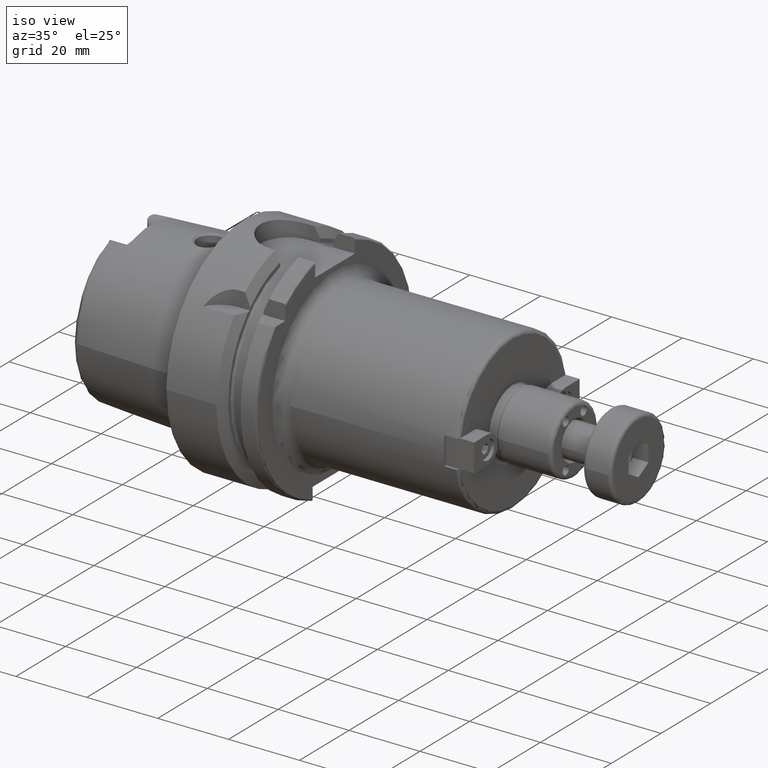
[diagram: clean part render]
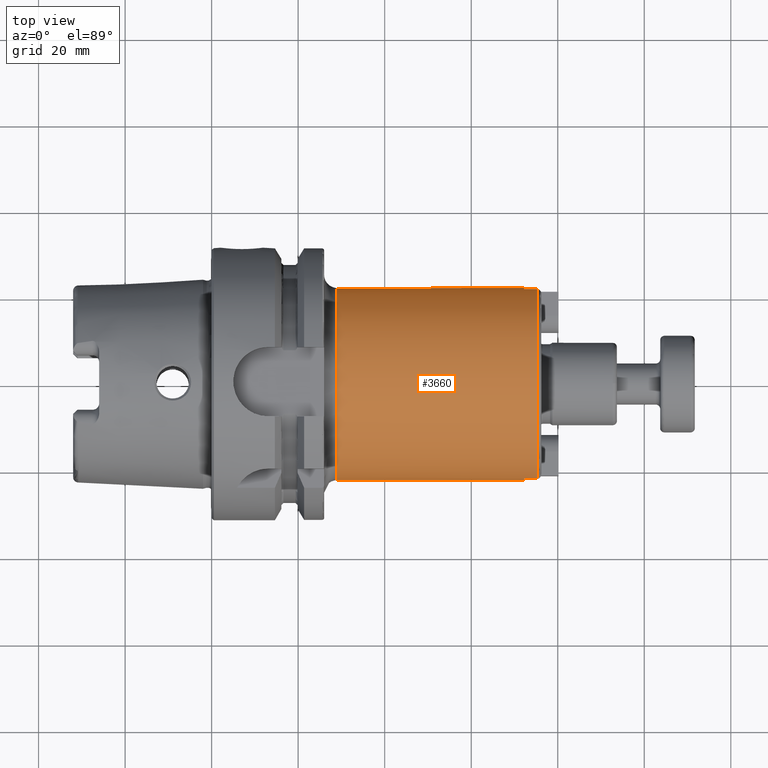
[diagram: tour spotlight — one face highlighted and labeled with its STEP entity id]
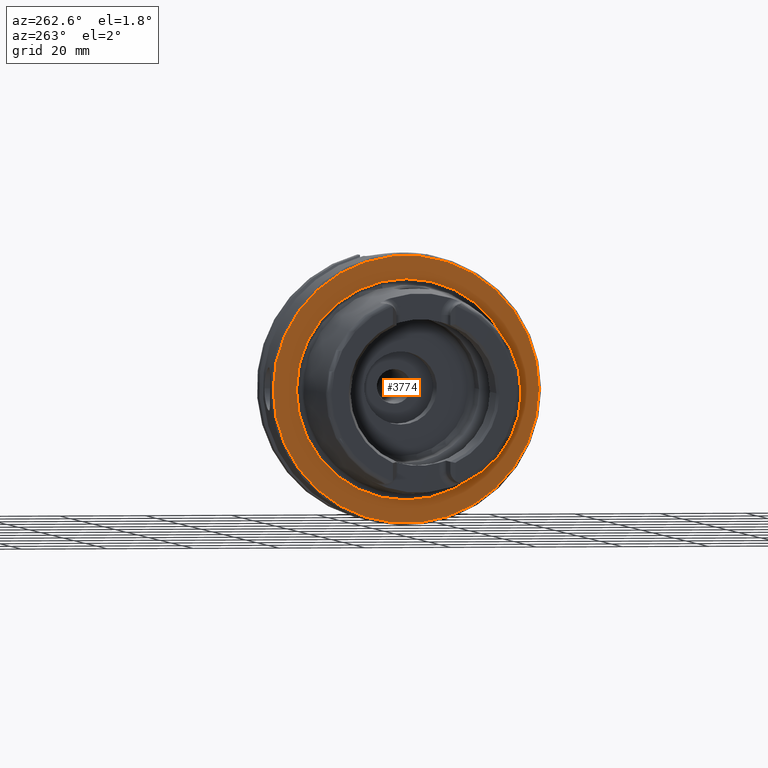
[diagram: tour spotlight — one face highlighted and labeled with its STEP entity id]
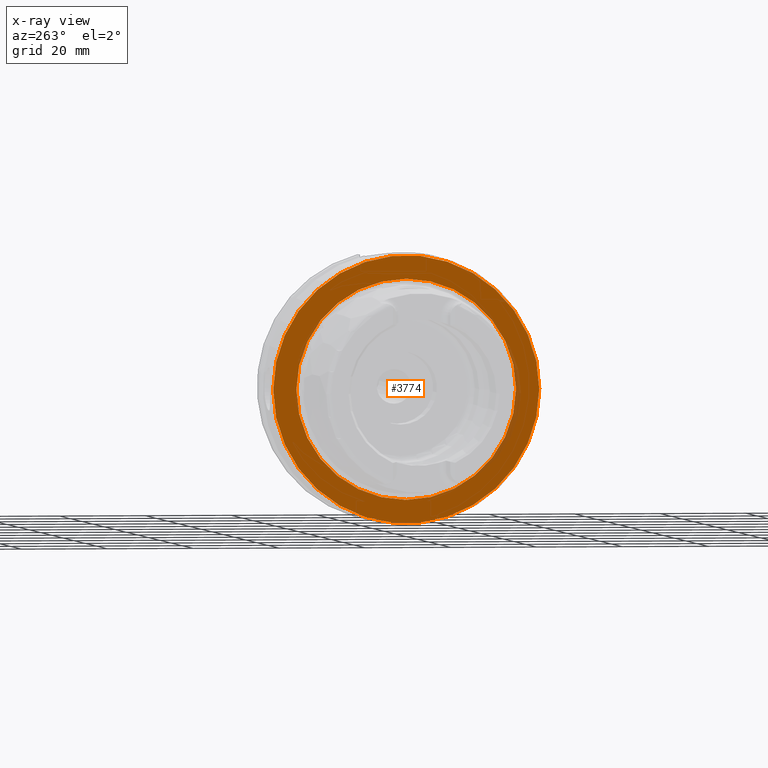
[diagram: x-ray of the same camera — body ghosted, this tour face saturated]
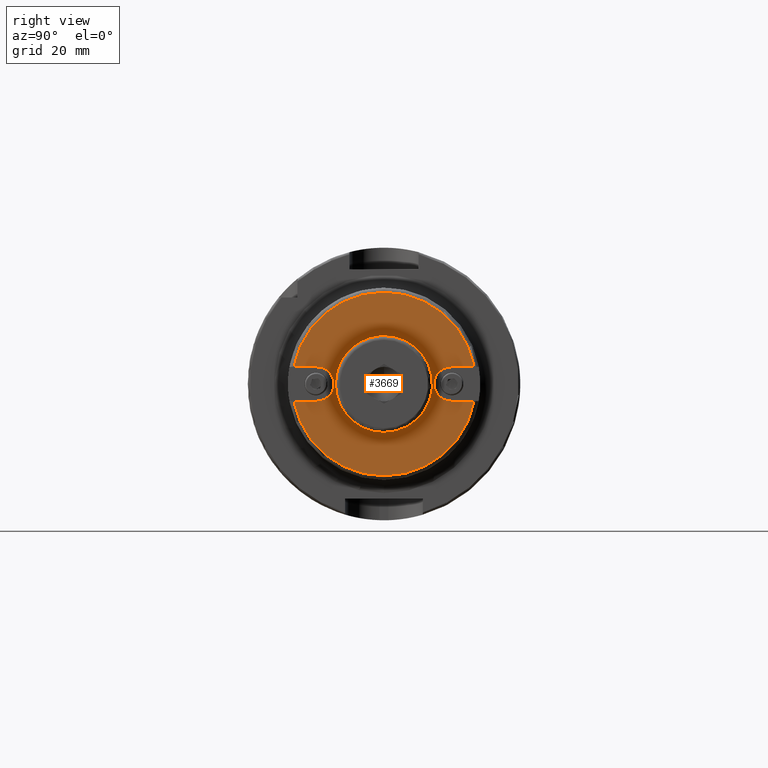
[diagram: tour spotlight — one face highlighted and labeled with its STEP entity id]
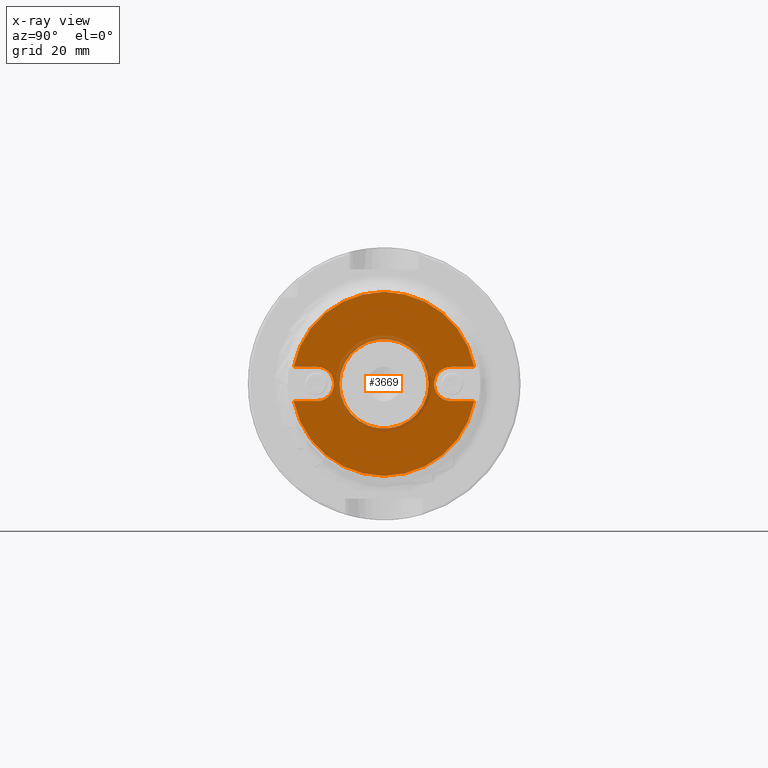
[diagram: x-ray of the same camera — body ghosted, this tour face saturated]
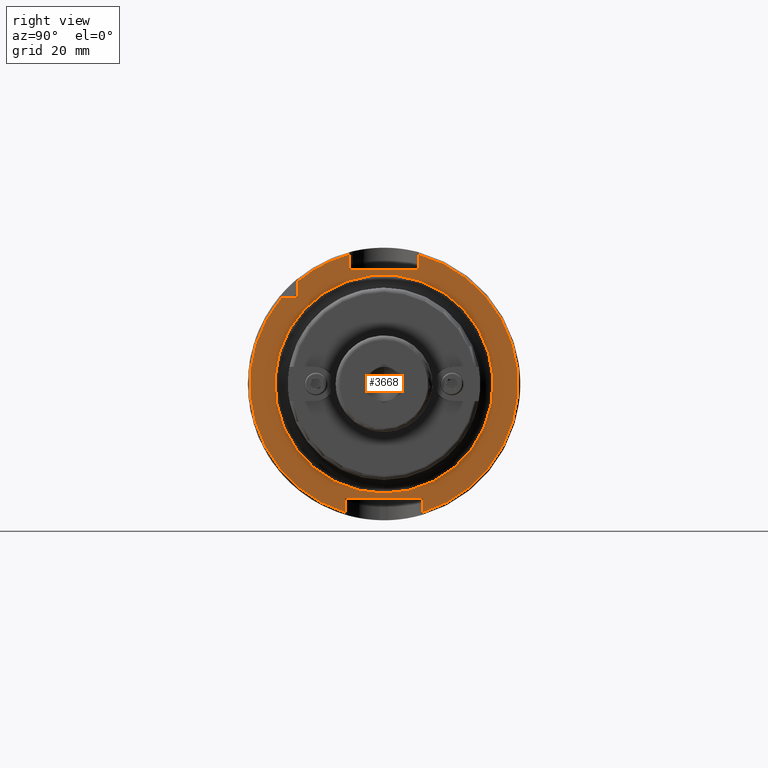
[diagram: tour spotlight — one face highlighted and labeled with its STEP entity id]
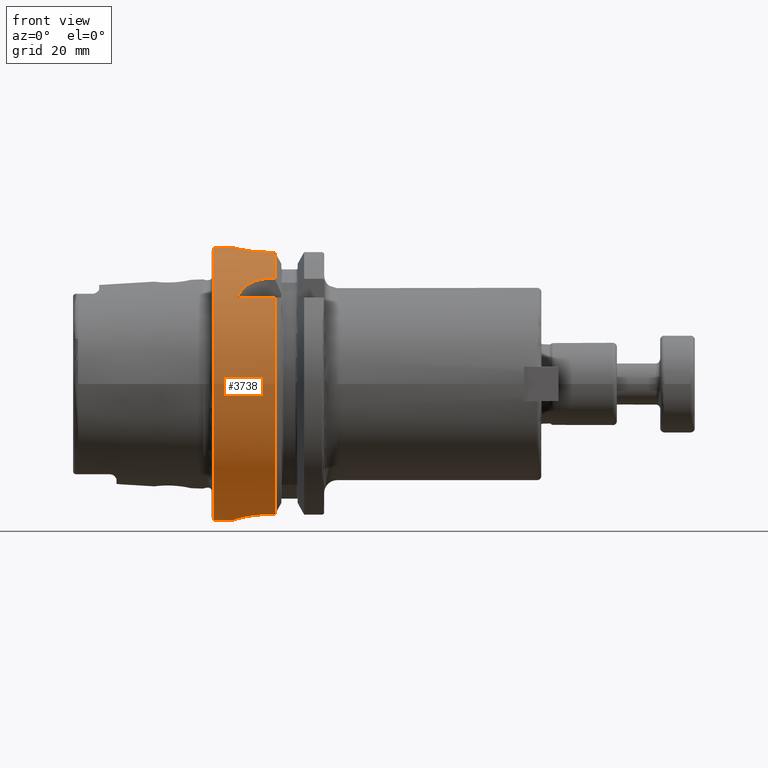
[diagram: tour spotlight — one face highlighted and labeled with its STEP entity id]
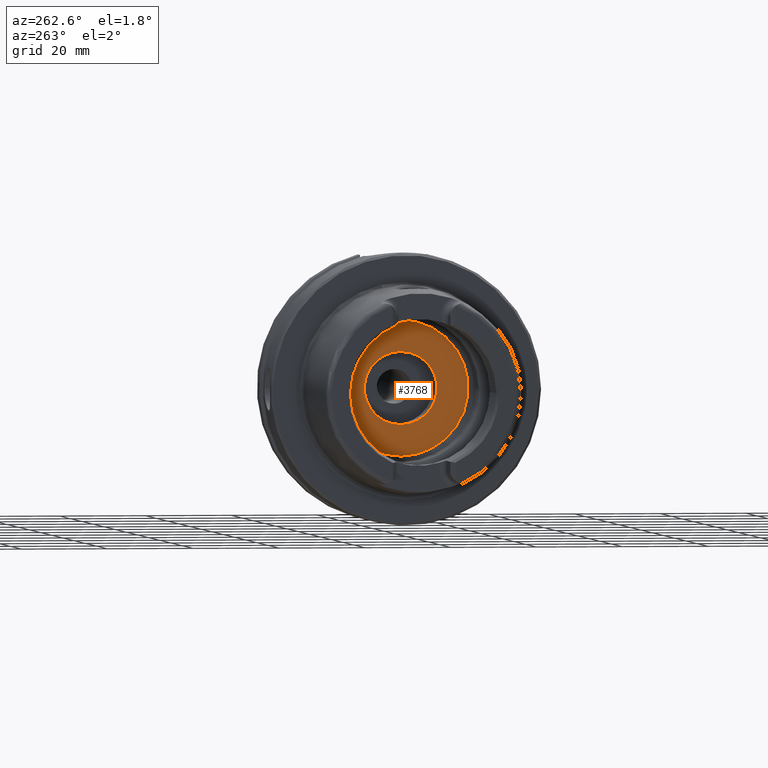
[diagram: tour spotlight — one face highlighted and labeled with its STEP entity id]
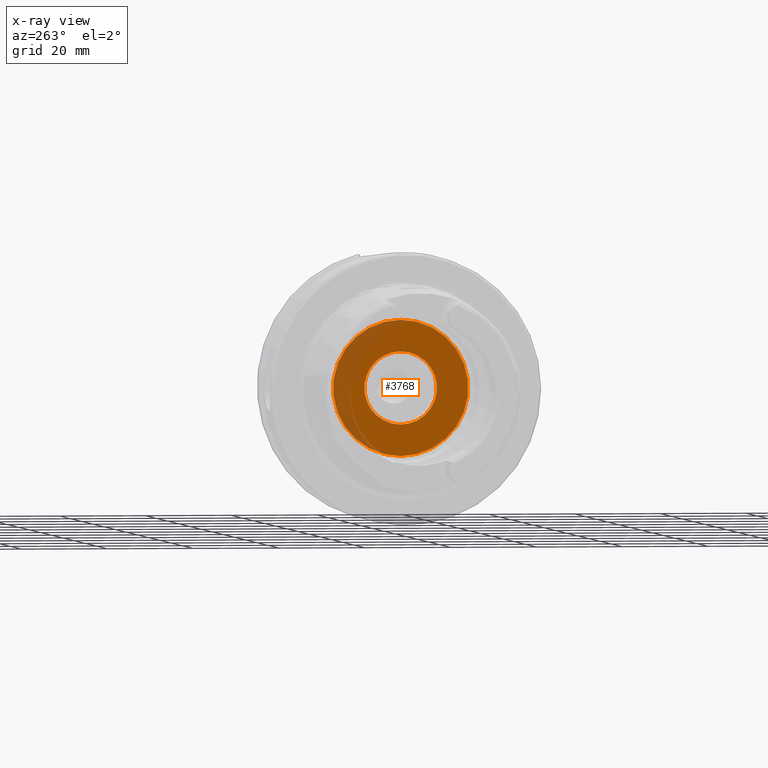
[diagram: x-ray of the same camera — body ghosted, this tour face saturated]
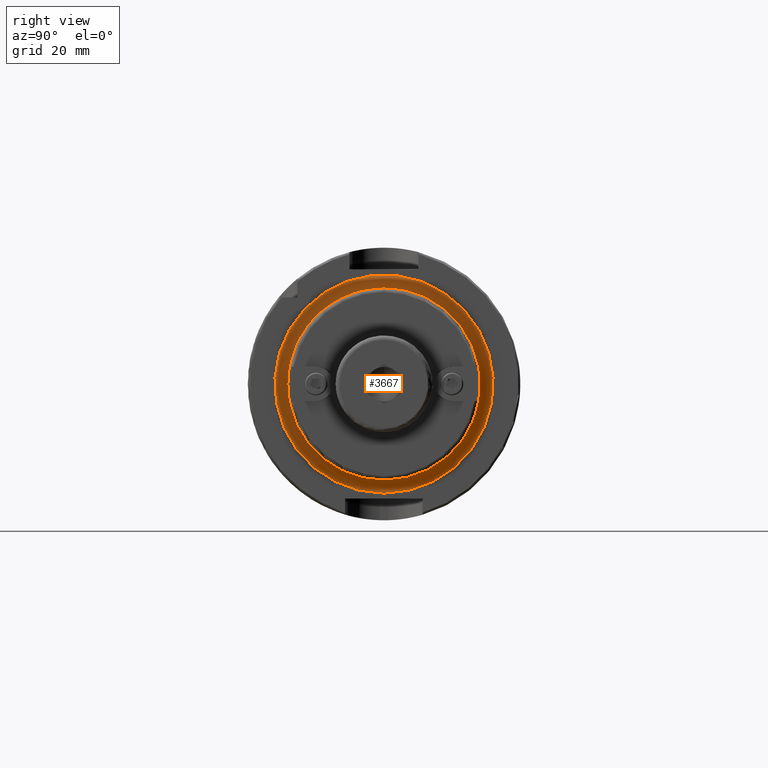
[diagram: tour spotlight — one face highlighted and labeled with its STEP entity id]
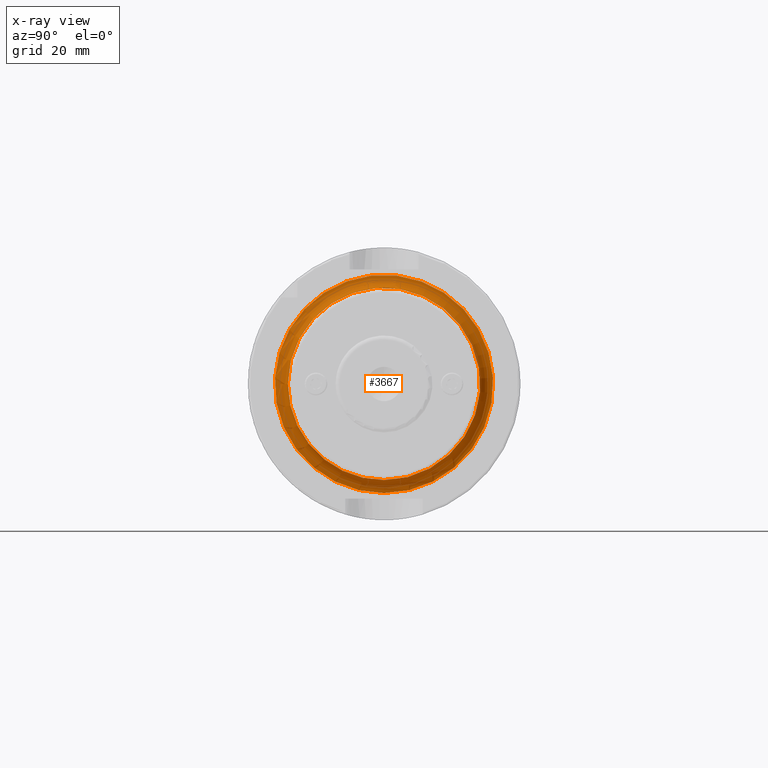
[diagram: x-ray of the same camera — body ghosted, this tour face saturated]
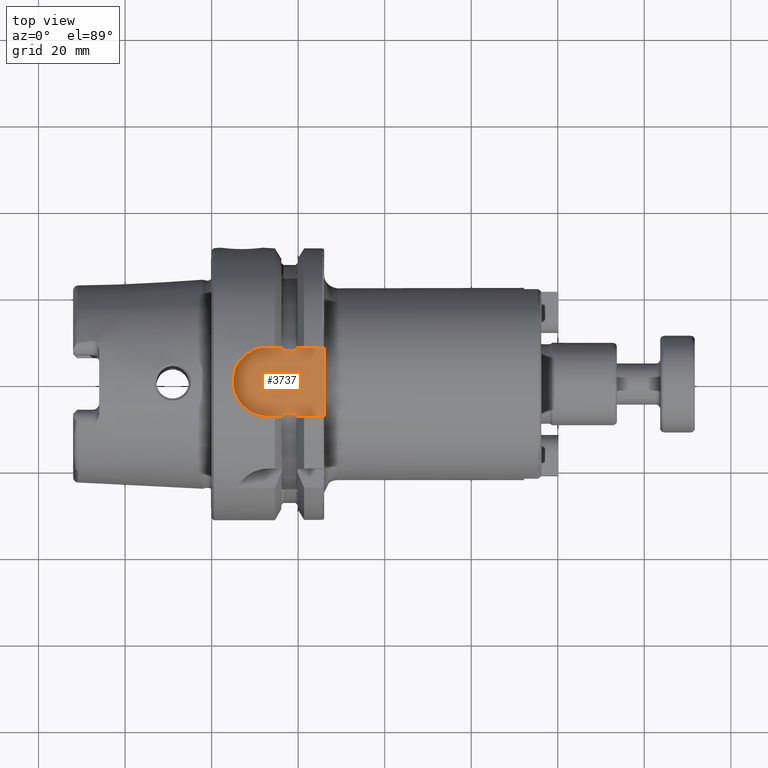
[diagram: tour spotlight — one face highlighted and labeled with its STEP entity id]
A machine part: a face-by-face anatomy tour. The part has 213 B-rep faces; the first image is the clean iso view, then the 8 largest visible faces are spotlighted one at a time (largest first), each with its STEP entity span.

Face 1 — top view, entity #3660. In plain terms, the highlighted cylindrical surface (bore or boss wall) has radius 22.225 mm, axis along (1, 0, 0).
Definition (entity closure, byte-faithful):
#792=CYLINDRICAL_SURFACE('',#4046,22.225);
#857=FACE_OUTER_BOUND('',#1053,.T.);
#1053=EDGE_LOOP('',(#2747,#2748,#2749,#2750,#2751,#2752,#2753,#2754,#2755,
#2756,#2757,#2758,#2759));
#1253=LINE('',#5721,#1447);
#1256=LINE('',#5747,#1450);
#1261=LINE('',#5768,#1455);
#1264=LINE('',#5792,#1458);
#1266=LINE('',#5796,#1460);
#1447=VECTOR('',#4564,10.);
#1450=VECTOR('',#4581,10.);
#1455=VECTOR('',#4588,10.);
#1458=VECTOR('',#4603,10.);
#1460=VECTOR('',#4607,22.225);
#1641=CIRCLE('',#4033,22.225);
#1643=CIRCLE('',#4035,22.225);
#1645=CIRCLE('',#4041,22.225);
#1648=CIRCLE('',#4047,22.225);
#1649=CIRCLE('',#4048,22.225);
#1650=CIRCLE('',#4049,22.225);
#1651=CIRCLE('',#4050,22.225);
#1879=VERTEX_POINT('',#5704);
#1882=VERTEX_POINT('',#5719);
#1883=VERTEX_POINT('',#5723);
#1885=VERTEX_POINT('',#5727);
#1887=VERTEX_POINT('',#5735);
#1890=VERTEX_POINT('',#5751);
#1893=VERTEX_POINT('',#5766);
#1894=VERTEX_POINT('',#5770);
#1897=VERTEX_POINT('',#5780);
#1899=VERTEX_POINT('',#5795);
#1900=VERTEX_POINT('',#5797);
#2205=EDGE_CURVE('',#1879,#1882,#1253,.T.);
#2206=EDGE_CURVE('',#1882,#1883,#1641,.T.);
#2209=EDGE_CURVE('',#1883,#1885,#1643,.T.);
#2213=EDGE_CURVE('',#1885,#1887,#1256,.T.);
#2219=EDGE_CURVE('',#1890,#1893,#1261,.T.);
#2220=EDGE_CURVE('',#1893,#1894,#1645,.T.);
#2226=EDGE_CURVE('',#1894,#1897,#1264,.T.);
#2228=EDGE_CURVE('',#1883,#1899,#1266,.T.);
#2229=EDGE_CURVE('',#1900,#1899,#1648,.T.);
#2230=EDGE_CURVE('',#1899,#1900,#1649,.T.);
#2231=EDGE_CURVE('',#1890,#1887,#1650,.T.);
#2232=EDGE_CURVE('',#1879,#1897,#1651,.T.);
#2747=ORIENTED_EDGE('',*,*,#2205,.T.);
#2748=ORIENTED_EDGE('',*,*,#2206,.T.);
#2749=ORIENTED_EDGE('',*,*,#2228,.T.);
#2750=ORIENTED_EDGE('',*,*,#2229,.F.);
#2751=ORIENTED_EDGE('',*,*,#2230,.F.);
#2752=ORIENTED_EDGE('',*,*,#2228,.F.);
#2753=ORIENTED_EDGE('',*,*,#2209,.T.);
#2754=ORIENTED_EDGE('',*,*,#2213,.T.);
#2755=ORIENTED_EDGE('',*,*,#2231,.F.);
#2756=ORIENTED_EDGE('',*,*,#2219,.T.);
#2757=ORIENTED_EDGE('',*,*,#2220,.T.);
#2758=ORIENTED_EDGE('',*,*,#2226,.T.);
#2759=ORIENTED_EDGE('',*,*,#2232,.F.);
#3660=ADVANCED_FACE('',(#857),#792,.T.);
#4033=AXIS2_PLACEMENT_3D('',#5724,#4567,#4568);
#4035=AXIS2_PLACEMENT_3D('',#5729,#4572,#4573);
#4041=AXIS2_PLACEMENT_3D('',#5771,#4591,#4592);
#4046=AXIS2_PLACEMENT_3D('',#5794,#4605,#4606);
#4047=AXIS2_PLACEMENT_3D('',#5798,#4608,#4609);
#4048=AXIS2_PLACEMENT_3D('',#5799,#4610,#4611);
#4049=AXIS2_PLACEMENT_3D('',#5800,#4612,#4613);
#4050=AXIS2_PLACEMENT_3D('',#5801,#4614,#4615);
#4564=DIRECTION('',(-1.,0.,0.));
#4567=DIRECTION('center_axis',(-1.,0.,0.));
#4568=DIRECTION('ref_axis',(0.,1.,0.));
#4572=DIRECTION('center_axis',(-1.,0.,0.));
#4573=DIRECTION('ref_axis',(0.,1.,0.));
#4581=DIRECTION('',(1.,0.,0.));
#4588=DIRECTION('',(-1.,0.,0.));
#4591=DIRECTION('center_axis',(-1.,0.,0.));
#4592=DIRECTION('ref_axis',(0.,1.,0.));
#4603=DIRECTION('',(1.,0.,0.));
#4605=DIRECTION('center_axis',(1.,0.,0.));
#4606=DIRECTION('ref_axis',(0.,1.,0.));
#4607=DIRECTION('',(-1.,0.,0.));
#4608=DIRECTION('center_axis',(-1.,0.,0.));
#4609=DIRECTION('ref_axis',(0.,-1.,-1.22464679914735E-16));
#4610=DIRECTION('center_axis',(-1.,0.,0.));
#4611=DIRECTION('ref_axis',(0.,-1.,-1.22464679914735E-16));
#4612=DIRECTION('center_axis',(1.,0.,0.));
#4613=DIRECTION('ref_axis',(0.,-1.,1.83697019872103E-16));
#4614=DIRECTION('center_axis',(1.,0.,0.));
#4615=DIRECTION('ref_axis',(0.,-1.,1.83697019872103E-16));
#5704=CARTESIAN_POINT('',(75.2,-21.868456735673,-3.965));
#5719=CARTESIAN_POINT('',(72.23,-21.868456735673,-3.965));
#5721=CARTESIAN_POINT('',(51.1,-21.868456735673,-3.965));
#5723=CARTESIAN_POINT('',(72.23,-22.225,-2.72177751110499E-15));
#5724=CARTESIAN_POINT('Origin',(72.23,0.,0.));
#5727=CARTESIAN_POINT('',(72.23,-21.868456735673,3.965));
#5729=CARTESIAN_POINT('Origin',(72.23,0.,0.));
#5735=CARTESIAN_POINT('',(75.2,-21.868456735673,3.965));
#5747=CARTESIAN_POINT('',(51.1,-21.868456735673,3.965));
#5751=CARTESIAN_POINT('',(75.2,21.868456735673,3.965));
#5766=CARTESIAN_POINT('',(72.23,21.868456735673,3.965));
#5768=CARTESIAN_POINT('',(51.1,21.868456735673,3.965));
#5770=CARTESIAN_POINT('',(72.23,21.868456735673,-3.965));
#5771=CARTESIAN_POINT('Origin',(72.23,0.,0.));
#5780=CARTESIAN_POINT('',(75.2,21.868456735673,-3.965));
#5792=CARTESIAN_POINT('',(51.1,21.868456735673,-3.965));
#5794=CARTESIAN_POINT('Origin',(51.1,0.,0.));
#5795=CARTESIAN_POINT('',(29.,-22.225,-2.72177751110499E-15));
#5796=CARTESIAN_POINT('',(51.1,-22.225,-2.72177751110499E-15));
#5797=CARTESIAN_POINT('',(29.,-2.72177751110499E-15,-22.225));
#5798=CARTESIAN_POINT('Origin',(29.,0.,0.));
#5799=CARTESIAN_POINT('Origin',(29.,0.,0.));
#5800=CARTESIAN_POINT('Origin',(75.2,0.,0.));
#5801=CARTESIAN_POINT('Origin',(75.2,0.,0.));

Face 2 — auxiliary view, entity #3774. An x-ray twin of the same camera follows (body ghosted, this face saturated) — the face is partly hidden behind the body. In plain terms, the highlighted planar face has unit normal (-1, 0, 0).
Definition (entity closure, byte-faithful):
#697=FACE_BOUND('',#1177,.T.);
#752=PLANE('',#4291);
#971=FACE_OUTER_BOUND('',#1176,.T.);
#1176=EDGE_LOOP('',(#3379));
#1177=EDGE_LOOP('',(#3380));
#1772=CIRCLE('',#4290,25.5879092835167);
#1773=CIRCLE('',#4292,31.);
#2096=VERTEX_POINT('',#7238);
#2097=VERTEX_POINT('',#7242);
#2536=EDGE_CURVE('',#2096,#2096,#1772,.T.);
#2537=EDGE_CURVE('',#2097,#2097,#1773,.T.);
#3379=ORIENTED_EDGE('',*,*,#2537,.F.);
#3380=ORIENTED_EDGE('',*,*,#2536,.T.);
#3774=ADVANCED_FACE('',(#971,#697),#752,.T.);
#4290=AXIS2_PLACEMENT_3D('',#7240,#5197,#5198);
#4291=AXIS2_PLACEMENT_3D('',#7241,#5199,#5200);
#4292=AXIS2_PLACEMENT_3D('',#7243,#5201,#5202);
#5197=DIRECTION('center_axis',(1.,0.,0.));
#5198=DIRECTION('ref_axis',(0.,0.,-1.));
#5199=DIRECTION('center_axis',(-1.,0.,0.));
#5200=DIRECTION('ref_axis',(0.,0.,1.));
#5201=DIRECTION('center_axis',(1.,0.,0.));
#5202=DIRECTION('ref_axis',(0.,0.,-1.));
#7238=CARTESIAN_POINT('',(-3.55618312575245E-16,-25.5879092835167,-3.13361512009315E-15));
#7240=CARTESIAN_POINT('Origin',(0.,0.,0.));
#7241=CARTESIAN_POINT('Origin',(0.,31.,0.));
#7242=CARTESIAN_POINT('',(-5.89805981832114E-16,-31.,-3.7964050773568E-15));
#7243=CARTESIAN_POINT('Origin',(0.,0.,0.));

Face 3 — right view, entity #3669. An x-ray twin of the same camera follows (body ghosted, this face saturated) — the face is partly hidden behind the body. In plain terms, the highlighted planar face has unit normal (1, 0, 0).
Definition (entity closure, byte-faithful):
#690=FACE_BOUND('',#1065,.T.);
#714=PLANE('',#4071);
#866=FACE_OUTER_BOUND('',#1064,.T.);
#1064=EDGE_LOOP('',(#2801,#2802,#2803,#2804,#2805,#2806,#2807,#2808));
#1065=EDGE_LOOP('',(#2809));
#1250=LINE('',#5716,#1444);
#1257=LINE('',#5748,#1451);
#1258=LINE('',#5763,#1452);
#1265=LINE('',#5793,#1459);
#1444=VECTOR('',#4561,10.);
#1451=VECTOR('',#4582,10.);
#1452=VECTOR('',#4585,10.);
#1459=VECTOR('',#4604,10.);
#1644=CIRCLE('',#4037,3.965);
#1647=CIRCLE('',#4044,3.965);
#1652=CIRCLE('',#4052,21.225);
#1653=CIRCLE('',#4054,21.225);
#1664=CIRCLE('',#4072,10.3);
#1878=VERTEX_POINT('',#5703);
#1880=VERTEX_POINT('',#5715);
#1886=VERTEX_POINT('',#5731);
#1888=VERTEX_POINT('',#5736);
#1889=VERTEX_POINT('',#5750);
#1891=VERTEX_POINT('',#5762);
#1896=VERTEX_POINT('',#5776);
#1898=VERTEX_POINT('',#5781);
#1918=VERTEX_POINT('',#5851);
#2202=EDGE_CURVE('',#1880,#1878,#1250,.T.);
#2210=EDGE_CURVE('',#1886,#1880,#1644,.T.);
#2214=EDGE_CURVE('',#1888,#1886,#1257,.T.);
#2216=EDGE_CURVE('',#1891,#1889,#1258,.T.);
#2223=EDGE_CURVE('',#1896,#1891,#1647,.T.);
#2227=EDGE_CURVE('',#1898,#1896,#1265,.T.);
#2233=EDGE_CURVE('',#1888,#1889,#1652,.T.);
#2234=EDGE_CURVE('',#1898,#1878,#1653,.T.);
#2256=EDGE_CURVE('',#1918,#1918,#1664,.T.);
#2801=ORIENTED_EDGE('',*,*,#2202,.T.);
#2802=ORIENTED_EDGE('',*,*,#2234,.F.);
#2803=ORIENTED_EDGE('',*,*,#2227,.T.);
#2804=ORIENTED_EDGE('',*,*,#2223,.T.);
#2805=ORIENTED_EDGE('',*,*,#2216,.T.);
#2806=ORIENTED_EDGE('',*,*,#2233,.F.);
#2807=ORIENTED_EDGE('',*,*,#2214,.T.);
#2808=ORIENTED_EDGE('',*,*,#2210,.T.);
#2809=ORIENTED_EDGE('',*,*,#2256,.F.);
#3669=ADVANCED_FACE('',(#866,#690),#714,.T.);
#4037=AXIS2_PLACEMENT_3D('',#5732,#4576,#4577);
#4044=AXIS2_PLACEMENT_3D('',#5777,#4598,#4599);
#4052=AXIS2_PLACEMENT_3D('',#5803,#4618,#4619);
#4054=AXIS2_PLACEMENT_3D('',#5805,#4622,#4623);
#4071=AXIS2_PLACEMENT_3D('',#5850,#4667,#4668);
#4072=AXIS2_PLACEMENT_3D('',#5852,#4669,#4670);
#4561=DIRECTION('',(0.,-1.,0.));
#4576=DIRECTION('center_axis',(-1.,0.,0.));
#4577=DIRECTION('ref_axis',(0.,0.,-1.));
#4582=DIRECTION('',(0.,1.,0.));
#4585=DIRECTION('',(0.,1.,0.));
#4598=DIRECTION('center_axis',(-1.,0.,0.));
#4599=DIRECTION('ref_axis',(0.,0.,1.));
#4604=DIRECTION('',(0.,-1.,0.));
#4618=DIRECTION('center_axis',(-1.,0.,0.));
#4619=DIRECTION('ref_axis',(0.,-1.,1.83697019872103E-16));
#4622=DIRECTION('center_axis',(-1.,0.,0.));
#4623=DIRECTION('ref_axis',(0.,-1.,1.83697019872103E-16));
#4667=DIRECTION('center_axis',(1.,0.,0.));
#4668=DIRECTION('ref_axis',(0.,0.,-1.));
#4669=DIRECTION('center_axis',(1.,0.,0.));
#4670=DIRECTION('ref_axis',(0.,0.,-1.));
#5703=CARTESIAN_POINT('',(76.2,-20.8513644637467,-3.965));
#5715=CARTESIAN_POINT('',(76.2,-15.52,-3.965));
#5716=CARTESIAN_POINT('',(76.2,-2.61,-3.965));
#5731=CARTESIAN_POINT('',(76.2,-15.52,3.965));
#5732=CARTESIAN_POINT('Origin',(76.2,-15.52,0.));
#5736=CARTESIAN_POINT('',(76.2,-20.8513644637467,3.965));
#5748=CARTESIAN_POINT('',(76.2,-8.4625,3.965));
#5750=CARTESIAN_POINT('',(76.2,20.8513644637467,3.965));
#5762=CARTESIAN_POINT('',(76.2,15.52,3.965));
#5763=CARTESIAN_POINT('',(76.2,12.91,3.965));
#5776=CARTESIAN_POINT('',(76.2,15.52,-3.965));
#5777=CARTESIAN_POINT('Origin',(76.2,15.52,0.));
#5781=CARTESIAN_POINT('',(76.2,20.8513644637467,-3.965));
#5793=CARTESIAN_POINT('',(76.2,18.7625,-3.965));
#5803=CARTESIAN_POINT('Origin',(76.2,0.,0.));
#5805=CARTESIAN_POINT('Origin',(76.2,0.,0.));
#5850=CARTESIAN_POINT('Origin',(76.2,10.3,0.));
#5851=CARTESIAN_POINT('',(76.2,-10.3,-1.26138620312177E-15));
#5852=CARTESIAN_POINT('Origin',(76.2,0.,0.));

Face 4 — right view, entity #3668. In plain terms, the highlighted planar face has unit normal (1, 0, 0).
Definition (entity closure, byte-faithful):
#689=FACE_BOUND('',#1063,.T.);
#713=PLANE('',#4067);
#865=FACE_OUTER_BOUND('',#1062,.T.);
#1062=EDGE_LOOP('',(#2789,#2790,#2791,#2792,#2793,#2794,#2795,#2796,#2797,
#2798,#2799));
#1063=EDGE_LOOP('',(#2800));
#1270=LINE('',#5830,#1464);
#1271=LINE('',#5834,#1465);
#1272=LINE('',#5836,#1466);
#1273=LINE('',#5838,#1467);
#1274=LINE('',#5842,#1468);
#1275=LINE('',#5844,#1469);
#1276=LINE('',#5846,#1470);
#1277=LINE('',#5849,#1471);
#1464=VECTOR('',#4653,10.);
#1465=VECTOR('',#4656,10.);
#1466=VECTOR('',#4657,10.);
#1467=VECTOR('',#4658,10.);
#1468=VECTOR('',#4661,10.);
#1469=VECTOR('',#4662,10.);
#1470=VECTOR('',#4663,10.);
#1471=VECTOR('',#4666,10.);
#1660=CIRCLE('',#4066,25.225);
#1661=CIRCLE('',#4068,31.);
#1662=CIRCLE('',#4069,31.);
#1663=CIRCLE('',#4070,31.);
#1906=VERTEX_POINT('',#5824);
#1907=VERTEX_POINT('',#5828);
#1908=VERTEX_POINT('',#5829);
#1909=VERTEX_POINT('',#5831);
#1910=VERTEX_POINT('',#5833);
#1911=VERTEX_POINT('',#5835);
#1912=VERTEX_POINT('',#5837);
#1913=VERTEX_POINT('',#5839);
#1914=VERTEX_POINT('',#5841);
#1915=VERTEX_POINT('',#5843);
#1916=VERTEX_POINT('',#5845);
#1917=VERTEX_POINT('',#5847);
#2244=EDGE_CURVE('',#1906,#1906,#1660,.T.);
#2245=EDGE_CURVE('',#1907,#1908,#1270,.T.);
#2246=EDGE_CURVE('',#1908,#1909,#1661,.T.);
#2247=EDGE_CURVE('',#1909,#1910,#1271,.T.);
#2248=EDGE_CURVE('',#1910,#1911,#1272,.T.);
#2249=EDGE_CURVE('',#1911,#1912,#1273,.T.);
#2250=EDGE_CURVE('',#1912,#1913,#1662,.T.);
#2251=EDGE_CURVE('',#1913,#1914,#1274,.T.);
#2252=EDGE_CURVE('',#1914,#1915,#1275,.T.);
#2253=EDGE_CURVE('',#1915,#1916,#1276,.T.);
#2254=EDGE_CURVE('',#1916,#1917,#1663,.T.);
#2255=EDGE_CURVE('',#1917,#1907,#1277,.T.);
#2789=ORIENTED_EDGE('',*,*,#2245,.T.);
#2790=ORIENTED_EDGE('',*,*,#2246,.T.);
#2791=ORIENTED_EDGE('',*,*,#2247,.T.);
#2792=ORIENTED_EDGE('',*,*,#2248,.T.);
#2793=ORIENTED_EDGE('',*,*,#2249,.T.);
#2794=ORIENTED_EDGE('',*,*,#2250,.T.);
#2795=ORIENTED_EDGE('',*,*,#2251,.T.);
#2796=ORIENTED_EDGE('',*,*,#2252,.T.);
#2797=ORIENTED_EDGE('',*,*,#2253,.T.);
#2798=ORIENTED_EDGE('',*,*,#2254,.T.);
#2799=ORIENTED_EDGE('',*,*,#2255,.T.);
#2800=ORIENTED_EDGE('',*,*,#2244,.F.);
#3668=ADVANCED_FACE('',(#865,#689),#713,.T.);
#4066=AXIS2_PLACEMENT_3D('',#5826,#4649,#4650);
#4067=AXIS2_PLACEMENT_3D('',#5827,#4651,#4652);
#4068=AXIS2_PLACEMENT_3D('',#5832,#4654,#4655);
#4069=AXIS2_PLACEMENT_3D('',#5840,#4659,#4660);
#4070=AXIS2_PLACEMENT_3D('',#5848,#4664,#4665);
#4649=DIRECTION('center_axis',(1.,0.,0.));
#4650=DIRECTION('ref_axis',(0.,-1.,-1.22464679914735E-16));
#4651=DIRECTION('center_axis',(1.,0.,0.));
#4652=DIRECTION('ref_axis',(0.,0.,-1.));
#4653=DIRECTION('',(0.,-1.,0.));
#4654=DIRECTION('center_axis',(1.,0.,0.));
#4655=DIRECTION('ref_axis',(0.,0.,-1.));
#4656=DIRECTION('',(0.,0.,1.));
#4657=DIRECTION('',(0.,1.,0.));
#4658=DIRECTION('',(0.,0.,-1.));
#4659=DIRECTION('center_axis',(1.,0.,0.));
#4660=DIRECTION('ref_axis',(0.,0.,-1.));
#4661=DIRECTION('',(0.,0.,-1.));
#4662=DIRECTION('',(0.,-1.,0.));
#4663=DIRECTION('',(0.,0.,1.));
#4664=DIRECTION('center_axis',(1.,0.,0.));
#4665=DIRECTION('ref_axis',(0.,0.,-1.));
#4666=DIRECTION('',(0.,0.,-1.));
#5824=CARTESIAN_POINT('',(26.,-3.0891715508492E-15,-25.225));
#5826=CARTESIAN_POINT('Origin',(26.,0.,0.));
#5827=CARTESIAN_POINT('Origin',(26.,0.,0.));
#5828=CARTESIAN_POINT('',(26.,-20.,20.));
#5829=CARTESIAN_POINT('',(26.,-23.685438564654,20.));
#5830=CARTESIAN_POINT('',(26.,-12.,20.));
#5831=CARTESIAN_POINT('',(26.,-9.,-29.6647939483827));
#5832=CARTESIAN_POINT('Origin',(26.,0.,0.));
#5833=CARTESIAN_POINT('',(26.,-9.,-26.5));
#5834=CARTESIAN_POINT('',(26.,-9.,-13.25));
#5835=CARTESIAN_POINT('',(26.,9.,-26.5));
#5836=CARTESIAN_POINT('',(26.,1.94289029309402E-15,-26.5));
#5837=CARTESIAN_POINT('',(26.,9.,-29.6647939483827));
#5838=CARTESIAN_POINT('',(26.,9.,-13.25));
#5839=CARTESIAN_POINT('',(26.,8.,29.9499582637439));
#5840=CARTESIAN_POINT('Origin',(26.,0.,0.));
#5841=CARTESIAN_POINT('',(26.,8.,26.5));
#5842=CARTESIAN_POINT('',(26.,8.,13.25));
#5843=CARTESIAN_POINT('',(26.,-8.,26.5));
#5844=CARTESIAN_POINT('',(26.,5.55111512312578E-16,26.5));
#5845=CARTESIAN_POINT('',(26.,-8.,29.9499582637439));
#5846=CARTESIAN_POINT('',(26.,-8.,13.25));
#5847=CARTESIAN_POINT('',(26.,-20.,23.685438564654));
#5848=CARTESIAN_POINT('Origin',(26.,0.,0.));
#5849=CARTESIAN_POINT('',(26.,-20.,10.));

Face 5 — front view, entity #3738. In plain terms, the highlighted cylindrical surface (bore or boss wall) has radius 31.5 mm, axis along (1, 0, 0).
Definition (entity closure, byte-faithful):
#649=B_SPLINE_CURVE_WITH_KNOTS('',3,(#6595,#6596,#6597,#6598,#6599,#6600,
#6601,#6602,#6603,#6604,#6605,#6606,#6607,#6608,#6609,#6610,#6611,#6612,
#6613,#6614,#6615,#6616,#6617,#6618,#6619,#6620),.UNSPECIFIED.,.F.,.F.,
(4,2,2,2,2,2,2,2,2,2,2,2,4),(0.,0.188688694287612,0.377377388575223,0.56606194688798,
0.754746505200737,0.943431063513494,1.13211562182625,1.32080431611386,1.50949301040147,
1.69818170468909,1.8868703989767,2.07555495728945,2.26423951560221),
 .UNSPECIFIED.);
#650=B_SPLINE_CURVE_WITH_KNOTS('',3,(#6621,#6622,#6623,#6624,#6625,#6626,
#6627,#6628,#6629,#6630),.UNSPECIFIED.,.F.,.F.,(4,2,2,2,4),(2.26423951560221,
2.45292407391497,2.64160863222773,2.83029732651534,3.01898602080295),
 .UNSPECIFIED.);
#653=B_SPLINE_CURVE_WITH_KNOTS('',3,(#6687,#6688,#6689,#6690,#6691,#6692,
#6693,#6694,#6695,#6696,#6697,#6698),.UNSPECIFIED.,.F.,.F.,(4,2,2,2,2,4),
(1.1085154204615,1.31979218709236,1.52798350480179,1.73617482251122,1.90421770126337,
2.07226058001552),.UNSPECIFIED.);
#663=B_SPLINE_CURVE_WITH_KNOTS('',3,(#6867,#6868,#6869,#6870,#6871,#6872,
#6873,#6874,#6875,#6876),.UNSPECIFIED.,.F.,.F.,(4,2,2,2,4),(1.20927420824097,
1.5131742975437,1.81707438684643,2.12000449915965,2.42293461147287),
 .UNSPECIFIED.);
#666=B_SPLINE_CURVE_WITH_KNOTS('',3,(#6902,#6903,#6904,#6905,#6906,#6907,
#6908,#6909,#6910,#6911),.UNSPECIFIED.,.F.,.F.,(4,2,2,2,4),(0.,0.30293011231322,
0.605860224626439,0.90976031392917,1.2136604032319),.UNSPECIFIED.);
#676=B_SPLINE_CURVE_WITH_KNOTS('',3,(#7057,#7058,#7059,#7060,#7061,#7062,
#7063,#7064,#7065,#7066,#7067,#7068,#7069,#7070,#7071,#7072,#7073,#7074),
 .UNSPECIFIED.,.F.,.F.,(4,2,2,2,2,2,2,2,4),(0.,0.302805879979318,0.605611759958635,
0.908372461246501,1.21113316253437,1.51389386382223,1.8166545651101,2.11946044508942,
2.42226632506874),.UNSPECIFIED.);
#693=FACE_BOUND('',#1137,.T.);
#814=CYLINDRICAL_SURFACE('',#4213,31.5);
#935=FACE_OUTER_BOUND('',#1136,.T.);
#1136=EDGE_LOOP('',(#3196,#3197,#3198,#3199,#3200,#3201,#3202,#3203,#3204,
#3205,#3206,#3207,#3208,#3209,#3210,#3211,#3212,#3213));
#1137=EDGE_LOOP('',(#3214,#3215));
#1316=LINE('',#6662,#1510);
#1321=LINE('',#6707,#1515);
#1339=LINE('',#6884,#1533);
#1340=LINE('',#6888,#1534);
#1352=LINE('',#7051,#1546);
#1355=LINE('',#7081,#1549);
#1357=LINE('',#7087,#1551);
#1510=VECTOR('',#4859,10.);
#1515=VECTOR('',#4870,10.);
#1533=VECTOR('',#4934,10.);
#1534=VECTOR('',#4937,10.);
#1546=VECTOR('',#5015,10.);
#1549=VECTOR('',#5026,10.);
#1551=VECTOR('',#5034,31.5);
#1707=CIRCLE('',#4156,31.5);
#1708=CIRCLE('',#4157,31.5);
#1716=CIRCLE('',#4177,31.5);
#1717=CIRCLE('',#4179,31.5);
#1731=CIRCLE('',#4214,31.5);
#1732=CIRCLE('',#4215,31.5);
#1997=VERTEX_POINT('',#6592);
#1998=VERTEX_POINT('',#6594);
#2006=VERTEX_POINT('',#6659);
#2007=VERTEX_POINT('',#6661);
#2011=VERTEX_POINT('',#6686);
#2013=VERTEX_POINT('',#6703);
#2018=VERTEX_POINT('',#6719);
#2019=VERTEX_POINT('',#6721);
#2044=VERTEX_POINT('',#6865);
#2045=VERTEX_POINT('',#6866);
#2046=VERTEX_POINT('',#6886);
#2047=VERTEX_POINT('',#6887);
#2050=VERTEX_POINT('',#6901);
#2051=VERTEX_POINT('',#6916);
#2067=VERTEX_POINT('',#7048);
#2068=VERTEX_POINT('',#7050);
#2069=VERTEX_POINT('',#7056);
#2071=VERTEX_POINT('',#7086);
#2364=EDGE_CURVE('',#1998,#1997,#649,.T.);
#2365=EDGE_CURVE('',#1997,#1998,#650,.T.);
#2374=EDGE_CURVE('',#2007,#2006,#1316,.T.);
#2380=EDGE_CURVE('',#2006,#2011,#653,.T.);
#2384=EDGE_CURVE('',#2011,#2013,#1321,.T.);
#2390=EDGE_CURVE('',#2007,#2018,#1707,.T.);
#2391=EDGE_CURVE('',#2018,#2019,#1708,.T.);
#2425=EDGE_CURVE('',#2044,#2045,#663,.T.);
#2429=EDGE_CURVE('',#2045,#2019,#1339,.T.);
#2430=EDGE_CURVE('',#2046,#2047,#1340,.T.);
#2435=EDGE_CURVE('',#2047,#2050,#666,.T.);
#2437=EDGE_CURVE('',#2050,#2044,#1716,.T.);
#2438=EDGE_CURVE('',#2046,#2051,#1717,.T.);
#2470=EDGE_CURVE('',#2068,#2067,#1352,.T.);
#2472=EDGE_CURVE('',#2067,#2069,#676,.T.);
#2476=EDGE_CURVE('',#2069,#2051,#1355,.T.);
#2478=EDGE_CURVE('',#2068,#2013,#1731,.T.);
#2479=EDGE_CURVE('',#2018,#2071,#1357,.T.);
#2480=EDGE_CURVE('',#2071,#2071,#1732,.T.);
#3196=ORIENTED_EDGE('',*,*,#2384,.T.);
#3197=ORIENTED_EDGE('',*,*,#2478,.F.);
#3198=ORIENTED_EDGE('',*,*,#2470,.T.);
#3199=ORIENTED_EDGE('',*,*,#2472,.T.);
#3200=ORIENTED_EDGE('',*,*,#2476,.T.);
#3201=ORIENTED_EDGE('',*,*,#2438,.F.);
#3202=ORIENTED_EDGE('',*,*,#2430,.T.);
#3203=ORIENTED_EDGE('',*,*,#2435,.T.);
#3204=ORIENTED_EDGE('',*,*,#2437,.T.);
#3205=ORIENTED_EDGE('',*,*,#2425,.T.);
#3206=ORIENTED_EDGE('',*,*,#2429,.T.);
#3207=ORIENTED_EDGE('',*,*,#2391,.F.);
#3208=ORIENTED_EDGE('',*,*,#2479,.T.);
#3209=ORIENTED_EDGE('',*,*,#2480,.T.);
#3210=ORIENTED_EDGE('',*,*,#2479,.F.);
#3211=ORIENTED_EDGE('',*,*,#2390,.F.);
#3212=ORIENTED_EDGE('',*,*,#2374,.T.);
#3213=ORIENTED_EDGE('',*,*,#2380,.T.);
#3214=ORIENTED_EDGE('',*,*,#2364,.T.);
#3215=ORIENTED_EDGE('',*,*,#2365,.T.);
#3738=ADVANCED_FACE('',(#935,#693),#814,.T.);
#4156=AXIS2_PLACEMENT_3D('',#6720,#4883,#4884);
#4157=AXIS2_PLACEMENT_3D('',#6722,#4885,#4886);
#4177=AXIS2_PLACEMENT_3D('',#6914,#4945,#4946);
#4179=AXIS2_PLACEMENT_3D('',#6917,#4949,#4950);
#4213=AXIS2_PLACEMENT_3D('',#7084,#5030,#5031);
#4214=AXIS2_PLACEMENT_3D('',#7085,#5032,#5033);
#4215=AXIS2_PLACEMENT_3D('',#7088,#5035,#5036);
#4859=DIRECTION('',(-1.,0.,0.));
#4870=DIRECTION('',(1.,0.,0.));
#4883=DIRECTION('center_axis',(1.,0.,0.));
#4884=DIRECTION('ref_axis',(0.,0.,-1.));
#4885=DIRECTION('center_axis',(1.,0.,0.));
#4886=DIRECTION('ref_axis',(0.,0.,-1.));
#4934=DIRECTION('',(1.,0.,0.));
#4937=DIRECTION('',(-1.,0.,0.));
#4945=DIRECTION('center_axis',(-1.,0.,0.));
#4946=DIRECTION('ref_axis',(0.,1.,0.));
#4949=DIRECTION('center_axis',(1.,0.,0.));
#4950=DIRECTION('ref_axis',(0.,0.,-1.));
#5015=DIRECTION('',(-1.,0.,0.));
#5026=DIRECTION('',(1.,0.,0.));
#5030=DIRECTION('center_axis',(1.,0.,0.));
#5031=DIRECTION('ref_axis',(0.,1.,0.));
#5032=DIRECTION('center_axis',(1.,0.,0.));
#5033=DIRECTION('ref_axis',(0.,0.,-1.));
#5034=DIRECTION('',(-1.,0.,0.));
#5035=DIRECTION('center_axis',(1.,0.,0.));
#5036=DIRECTION('ref_axis',(0.,0.,-1.));
#6592=CARTESIAN_POINT('',(12.,31.5,-6.12323399573677E-16));
#6594=CARTESIAN_POINT('',(7.,31.100643080168,5.));
#6595=CARTESIAN_POINT('Ctrl Pts',(7.,31.100643080168,5.));
#6596=CARTESIAN_POINT('Ctrl Pts',(6.37103768570796,31.100643080168,5.));
#6597=CARTESIAN_POINT('Ctrl Pts',(5.70089281579202,31.1216953112949,4.87408354368814));
#6598=CARTESIAN_POINT('Ctrl Pts',(4.46931934300962,31.1973810209855,4.36348784122736));
#6599=CARTESIAN_POINT('Ctrl Pts',(3.90779781350673,31.2508828501623,3.97886562537221));
#6600=CARTESIAN_POINT('Ctrl Pts',(3.021144092268,31.3510329557602,3.09221190413348));
#6601=CARTESIAN_POINT('Ctrl Pts',(2.63651425348544,31.4042391414288,2.5306861925578));
#6602=CARTESIAN_POINT('Ctrl Pts',(2.12591301120586,31.4792463697936,1.29909839144709));
#6603=CARTESIAN_POINT('Ctrl Pts',(2.,31.5,0.62894852770919));
#6604=CARTESIAN_POINT('Ctrl Pts',(2.,31.5,-0.62894852770919));
#6605=CARTESIAN_POINT('Ctrl Pts',(2.12591301120586,31.4792463697936,-1.29909839144709));
#6606=CARTESIAN_POINT('Ctrl Pts',(2.63651425348544,31.4042391414288,-2.5306861925578));
#6607=CARTESIAN_POINT('Ctrl Pts',(3.021144092268,31.3510329557602,-3.09221190413348));
#6608=CARTESIAN_POINT('Ctrl Pts',(3.90779781350673,31.2508828501623,-3.97886562537221));
#6609=CARTESIAN_POINT('Ctrl Pts',(4.46931934300962,31.1973810209855,-4.36348784122736));
#6610=CARTESIAN_POINT('Ctrl Pts',(5.70089281579202,31.1216953112949,-4.87408354368814));
#6611=CARTESIAN_POINT('Ctrl Pts',(6.37103768570796,31.100643080168,-5.));
#6612=CARTESIAN_POINT('Ctrl Pts',(7.62896231429204,31.100643080168,-5.));
#6613=CARTESIAN_POINT('Ctrl Pts',(8.29910718420798,31.1216953112949,-4.87408354368814));
#6614=CARTESIAN_POINT('Ctrl Pts',(9.53068065699038,31.1973810209855,-4.36348784122736));
#6615=CARTESIAN_POINT('Ctrl Pts',(10.0922021864933,31.2508828501623,-3.97886562537221));
#6616=CARTESIAN_POINT('Ctrl Pts',(10.978855907732,31.3510329557602,-3.09221190413348));
#6617=CARTESIAN_POINT('Ctrl Pts',(11.3634857465146,31.4042391414288,-2.53068619255779));
#6618=CARTESIAN_POINT('Ctrl Pts',(11.8740869887941,31.4792463697936,-1.29909839144708));
#6619=CARTESIAN_POINT('Ctrl Pts',(12.,31.5,-0.62894852770919));
#6620=CARTESIAN_POINT('Ctrl Pts',(12.,31.5,-4.16333634234434E-16));
#6621=CARTESIAN_POINT('Ctrl Pts',(12.,31.5,-1.11022302462516E-15));
#6622=CARTESIAN_POINT('Ctrl Pts',(12.,31.5,0.628948527709188));
#6623=CARTESIAN_POINT('Ctrl Pts',(11.8740869887941,31.4792463697936,1.29909839144708));
#6624=CARTESIAN_POINT('Ctrl Pts',(11.3634857465146,31.4042391414288,2.53068619255779));
#6625=CARTESIAN_POINT('Ctrl Pts',(10.978855907732,31.3510329557602,3.09221190413348));
#6626=CARTESIAN_POINT('Ctrl Pts',(10.0922021864933,31.2508828501623,3.97886562537221));
#6627=CARTESIAN_POINT('Ctrl Pts',(9.53068065699038,31.1973810209855,4.36348784122736));
#6628=CARTESIAN_POINT('Ctrl Pts',(8.29910718420798,31.1216953112949,4.87408354368814));
#6629=CARTESIAN_POINT('Ctrl Pts',(7.62896231429204,31.100643080168,5.));
#6630=CARTESIAN_POINT('Ctrl Pts',(7.,31.100643080168,5.));
#6659=CARTESIAN_POINT('',(5.88828609634419,-24.3361870472759,20.));
#6661=CARTESIAN_POINT('',(14.6225009252407,-24.3361870472759,20.));
#6662=CARTESIAN_POINT('',(7.56125046262034,-24.3361870472759,20.));
#6686=CARTESIAN_POINT('',(13.,-20.,24.3361870472759));
#6687=CARTESIAN_POINT('Ctrl Pts',(5.88828609634419,-24.3361870472759,20.));
#6688=CARTESIAN_POINT('Ctrl Pts',(6.11069532820048,-23.9044753723342,20.5253108035937));
#6689=CARTESIAN_POINT('Ctrl Pts',(6.38325999044306,-23.4713523250807,21.0173865932788));
#6690=CARTESIAN_POINT('Ctrl Pts',(7.044898076458,-22.6317364276543,21.9186738868096));
#6691=CARTESIAN_POINT('Ctrl Pts',(7.46714468561685,-22.1861072682036,22.3682920878559));
#6692=CARTESIAN_POINT('Ctrl Pts',(8.46725531403812,-21.3767026700071,23.143042657319));
#6693=CARTESIAN_POINT('Ctrl Pts',(9.04646427720221,-21.0147449478223,23.4683362269255));
#6694=CARTESIAN_POINT('Ctrl Pts',(10.1145001432702,-20.5200081116516,23.9011603796022));
#6695=CARTESIAN_POINT('Ctrl Pts',(10.670823971716,-20.3234249831704,24.0673462447194));
#6696=CARTESIAN_POINT('Ctrl Pts',(11.8334528721306,-20.063121855676,24.2847667849476));
#6697=CARTESIAN_POINT('Ctrl Pts',(12.4398570708262,-20.,24.3361870472759));
#6698=CARTESIAN_POINT('Ctrl Pts',(13.,-20.,24.3361870472759));
#6703=CARTESIAN_POINT('',(14.6225009252407,-20.,24.3361870472759));
#6707=CARTESIAN_POINT('',(7.56125046262035,-20.,24.3361870472759));
#6719=CARTESIAN_POINT('',(14.6225009252407,-31.5,-3.85763741731416E-15));
#6720=CARTESIAN_POINT('Origin',(14.6225009252407,0.,0.));
#6721=CARTESIAN_POINT('',(14.6225009252407,-9.,-30.1869176962472));
#6722=CARTESIAN_POINT('Origin',(14.6225009252407,0.,0.));
#6865=CARTESIAN_POINT('',(5.,-0.999999999999999,-31.4841229828623));
#6866=CARTESIAN_POINT('',(13.,-9.,-30.1869176962472));
#6867=CARTESIAN_POINT('Ctrl Pts',(5.,-0.999999999999997,-31.4841229828623));
#6868=CARTESIAN_POINT('Ctrl Pts',(5.,-2.01248971281587,-31.4519642432536));
#6869=CARTESIAN_POINT('Ctrl Pts',(5.2037733306458,-3.08756640398171,-31.3640631381934));
#6870=CARTESIAN_POINT('Ctrl Pts',(6.02370102555041,-5.05836608044729,-31.1070804719497));
#6871=CARTESIAN_POINT('Ctrl Pts',(6.63955745341062,-5.95454409907418,-30.9405445582004));
#6872=CARTESIAN_POINT('Ctrl Pts',(8.05472493283182,-7.36715009628369,-30.6348764237341));
#6873=CARTESIAN_POINT('Ctrl Pts',(8.9496642215883,-7.98063403850821,-30.4752177477269));
#6874=CARTESIAN_POINT('Ctrl Pts',(10.9171740660538,-8.79719825889174,-30.2496070227108));
#6875=CARTESIAN_POINT('Ctrl Pts',(11.9902329589559,-9.,-30.1869176962472));
#6876=CARTESIAN_POINT('Ctrl Pts',(13.,-9.,-30.1869176962472));
#6884=CARTESIAN_POINT('',(7.56125046262035,-8.99999999999999,-30.1869176962472));
#6886=CARTESIAN_POINT('',(14.6225009252407,9.,-30.1869176962472));
#6887=CARTESIAN_POINT('',(13.,9.00000000000001,-30.1869176962472));
#6888=CARTESIAN_POINT('',(7.56125046262034,9.00000000000001,-30.1869176962472));
#6901=CARTESIAN_POINT('',(5.,1.,-31.4841229828623));
#6902=CARTESIAN_POINT('Ctrl Pts',(13.,9.00000000000001,-30.1869176962472));
#6903=CARTESIAN_POINT('Ctrl Pts',(11.9902329589559,9.00000000000001,-30.1869176962472));
#6904=CARTESIAN_POINT('Ctrl Pts',(10.9171740660538,8.79719825889175,-30.2496070227108));
#6905=CARTESIAN_POINT('Ctrl Pts',(8.9496642215883,7.98063403850822,-30.4752177477269));
#6906=CARTESIAN_POINT('Ctrl Pts',(8.05472493283182,7.3671500962837,-30.6348764237341));
#6907=CARTESIAN_POINT('Ctrl Pts',(6.63955745341061,5.95454409907419,-30.9405445582004));
#6908=CARTESIAN_POINT('Ctrl Pts',(6.02370102555041,5.0583660804473,-31.1070804719497));
#6909=CARTESIAN_POINT('Ctrl Pts',(5.2037733306458,3.08756640398172,-31.3640631381934));
#6910=CARTESIAN_POINT('Ctrl Pts',(5.,2.01248971281588,-31.4519642432536));
#6911=CARTESIAN_POINT('Ctrl Pts',(5.,1.00000000000001,-31.4841229828623));
#6914=CARTESIAN_POINT('Origin',(5.,0.,0.));
#6916=CARTESIAN_POINT('',(14.6225009252407,8.,30.4671954731642));
#6917=CARTESIAN_POINT('Origin',(14.6225009252407,0.,0.));
#7048=CARTESIAN_POINT('',(13.,-8.,30.4671954731642));
#7050=CARTESIAN_POINT('',(14.6225009252407,-8.,30.4671954731642));
#7051=CARTESIAN_POINT('',(7.56125046262034,-8.,30.4671954731642));
#7056=CARTESIAN_POINT('',(13.,8.,30.4671954731642));
#7057=CARTESIAN_POINT('Ctrl Pts',(13.,-8.,30.4671954731643));
#7058=CARTESIAN_POINT('Ctrl Pts',(11.9906470667356,-8.,30.4671954731643));
#7059=CARTESIAN_POINT('Ctrl Pts',(10.9172075930168,-7.79737202490167,30.5225803085525));
#7060=CARTESIAN_POINT('Ctrl Pts',(8.94758399331801,-6.97961067526075,30.719895002943));
#7061=CARTESIAN_POINT('Ctrl Pts',(8.05099322370438,-6.36470172268915,30.8586830127239));
#7062=CARTESIAN_POINT('Ctrl Pts',(6.63540388828045,-4.94911238726521,31.1170994373341));
#7063=CARTESIAN_POINT('Ctrl Pts',(6.02041263015313,-4.05247770930662,31.2539072689014));
#7064=CARTESIAN_POINT('Ctrl Pts',(5.20259114887399,-2.08269813865027,31.4466478906396));
#7065=CARTESIAN_POINT('Ctrl Pts',(5.,-1.00920233762622,31.5));
#7066=CARTESIAN_POINT('Ctrl Pts',(5.,1.00920233762622,31.5));
#7067=CARTESIAN_POINT('Ctrl Pts',(5.20259114887399,2.08269813865027,31.4466478906396));
#7068=CARTESIAN_POINT('Ctrl Pts',(6.02041263015313,4.05247770930662,31.2539072689014));
#7069=CARTESIAN_POINT('Ctrl Pts',(6.63540388828045,4.94911238726521,31.1170994373341));
#7070=CARTESIAN_POINT('Ctrl Pts',(8.05099322370439,6.36470172268915,30.8586830127239));
#7071=CARTESIAN_POINT('Ctrl Pts',(8.94758399331801,6.97961067526075,30.719895002943));
#7072=CARTESIAN_POINT('Ctrl Pts',(10.9172075930168,7.79737202490167,30.5225803085525));
#7073=CARTESIAN_POINT('Ctrl Pts',(11.9906470667356,8.,30.4671954731643));
#7074=CARTESIAN_POINT('Ctrl Pts',(13.,8.,30.4671954731643));
#7081=CARTESIAN_POINT('',(7.56125046262035,8.,30.4671954731642));
#7084=CARTESIAN_POINT('Origin',(7.56125046262034,0.,0.));
#7085=CARTESIAN_POINT('Origin',(14.6225009252407,0.,0.));
#7086=CARTESIAN_POINT('',(0.5,-31.5,-3.85763741731416E-15));
#7087=CARTESIAN_POINT('',(7.56125046262034,-31.5,-3.85763741731416E-15));
#7088=CARTESIAN_POINT('Origin',(0.5,0.,0.));

Face 6 — auxiliary view, entity #3768. An x-ray twin of the same camera follows (body ghosted, this face saturated) — the face is partly hidden behind the body. In plain terms, the highlighted planar face has unit normal (1, 0, 0).
Definition (entity closure, byte-faithful):
#696=FACE_BOUND('',#1170,.T.);
#751=PLANE('',#4275);
#965=FACE_OUTER_BOUND('',#1169,.T.);
#1169=EDGE_LOOP('',(#3349));
#1170=EDGE_LOOP('',(#3350));
#1756=CIRCLE('',#4264,8.458734);
#1763=CIRCLE('',#4276,15.75);
#2083=VERTEX_POINT('',#7195);
#2089=VERTEX_POINT('',#7215);
#2515=EDGE_CURVE('',#2083,#2083,#1756,.T.);
#2524=EDGE_CURVE('',#2089,#2089,#1763,.T.);
#3349=ORIENTED_EDGE('',*,*,#2524,.T.);
#3350=ORIENTED_EDGE('',*,*,#2515,.T.);
#3768=ADVANCED_FACE('',(#965,#696),#751,.F.);
#4264=AXIS2_PLACEMENT_3D('',#7196,#5140,#5141);
#4275=AXIS2_PLACEMENT_3D('',#7214,#5164,#5165);
#4276=AXIS2_PLACEMENT_3D('',#7216,#5166,#5167);
#5140=DIRECTION('center_axis',(1.,0.,0.));
#5141=DIRECTION('ref_axis',(0.,0.,1.));
#5164=DIRECTION('center_axis',(1.,0.,0.));
#5165=DIRECTION('ref_axis',(0.,0.,-1.));
#5166=DIRECTION('center_axis',(-1.,0.,0.));
#5167=DIRECTION('ref_axis',(0.,0.,1.));
#7195=CARTESIAN_POINT('',(10.,-1.03589615179389E-15,-8.458734));
#7196=CARTESIAN_POINT('Origin',(10.,0.,0.));
#7214=CARTESIAN_POINT('Origin',(10.,15.75,0.));
#7215=CARTESIAN_POINT('',(10.,-1.92881870865708E-15,-15.75));
#7216=CARTESIAN_POINT('Origin',(10.,0.,0.));

Face 7 — right view, entity #3667. An x-ray twin of the same camera follows (body ghosted, this face saturated) — the face is partly hidden behind the body. In plain terms, the highlighted toroidal blend (fillet) surface has major radius 25.225 mm and minor (blend) radius 3 mm.
Definition (entity closure, byte-faithful):
#590=TOROIDAL_SURFACE('',#4064,25.225,3.);
#864=FACE_OUTER_BOUND('',#1061,.T.);
#1061=EDGE_LOOP('',(#2784,#2785,#2786,#2787,#2788));
#1648=CIRCLE('',#4047,22.225);
#1649=CIRCLE('',#4048,22.225);
#1659=CIRCLE('',#4065,3.);
#1660=CIRCLE('',#4066,25.225);
#1899=VERTEX_POINT('',#5795);
#1900=VERTEX_POINT('',#5797);
#1906=VERTEX_POINT('',#5824);
#2229=EDGE_CURVE('',#1900,#1899,#1648,.T.);
#2230=EDGE_CURVE('',#1899,#1900,#1649,.T.);
#2243=EDGE_CURVE('',#1900,#1906,#1659,.T.);
#2244=EDGE_CURVE('',#1906,#1906,#1660,.T.);
#2784=ORIENTED_EDGE('',*,*,#2230,.T.);
#2785=ORIENTED_EDGE('',*,*,#2243,.T.);
#2786=ORIENTED_EDGE('',*,*,#2244,.T.);
#2787=ORIENTED_EDGE('',*,*,#2243,.F.);
#2788=ORIENTED_EDGE('',*,*,#2229,.T.);
#3667=ADVANCED_FACE('',(#864),#590,.F.);
#4047=AXIS2_PLACEMENT_3D('',#5798,#4608,#4609);
#4048=AXIS2_PLACEMENT_3D('',#5799,#4610,#4611);
#4064=AXIS2_PLACEMENT_3D('',#5823,#4645,#4646);
#4065=AXIS2_PLACEMENT_3D('',#5825,#4647,#4648);
#4066=AXIS2_PLACEMENT_3D('',#5826,#4649,#4650);
#4608=DIRECTION('center_axis',(-1.,0.,0.));
#4609=DIRECTION('ref_axis',(0.,-1.,-1.22464679914735E-16));
#4610=DIRECTION('center_axis',(-1.,0.,0.));
#4611=DIRECTION('ref_axis',(0.,-1.,-1.22464679914735E-16));
#4645=DIRECTION('center_axis',(-1.,0.,0.));
#4646=DIRECTION('ref_axis',(0.,0.,1.));
#4647=DIRECTION('center_axis',(0.,-1.,1.22464679914735E-16));
#4648=DIRECTION('ref_axis',(0.,-1.22464679914735E-16,-1.));
#4649=DIRECTION('center_axis',(1.,0.,0.));
#4650=DIRECTION('ref_axis',(0.,-1.,-1.22464679914735E-16));
#5795=CARTESIAN_POINT('',(29.,-22.225,-2.72177751110499E-15));
#5797=CARTESIAN_POINT('',(29.,-2.72177751110499E-15,-22.225));
#5798=CARTESIAN_POINT('Origin',(29.,0.,0.));
#5799=CARTESIAN_POINT('Origin',(29.,0.,0.));
#5823=CARTESIAN_POINT('Origin',(29.,0.,0.));
#5824=CARTESIAN_POINT('',(26.,-3.0891715508492E-15,-25.225));
#5825=CARTESIAN_POINT('Origin',(29.,-3.0891715508492E-15,-25.225));
#5826=CARTESIAN_POINT('Origin',(26.,0.,0.));

Face 8 — top view, entity #3737. In plain terms, the highlighted planar face has unit normal (0, 0, 1).
Definition (entity closure, byte-faithful):
#668=B_SPLINE_CURVE_WITH_KNOTS('',3,(#6936,#6937,#6938,#6939,#6940,#6941,
#6942,#6943,#6944,#6945),.UNSPECIFIED.,.F.,.F.,(4,2,2,2,4),(0.252714277572707,
0.289228035148658,0.316691561230897,0.323545183976989,0.328785692776271),
 .UNSPECIFIED.);
#669=B_SPLINE_CURVE_WITH_KNOTS('',3,(#6951,#6952,#6953,#6954,#6955,#6956,
#6957,#6958,#6959,#6960),.UNSPECIFIED.,.F.,.F.,(4,2,2,2,4),(0.328785692776271,
0.334026201575553,0.340879824321645,0.368343350403883,0.404857107979834),
 .UNSPECIFIED.);
#672=B_SPLINE_CURVE_WITH_KNOTS('',3,(#7005,#7006,#7007,#7008,#7009,#7010,
#7011,#7012,#7013,#7014),.UNSPECIFIED.,.F.,.F.,(4,2,2,2,4),(0.32878569277627,
0.334026201575551,0.340879824321645,0.368343350403882,0.404857107979833),
 .UNSPECIFIED.);
#675=B_SPLINE_CURVE_WITH_KNOTS('',3,(#7031,#7032,#7033,#7034,#7035,#7036,
#7037,#7038,#7039,#7040),.UNSPECIFIED.,.F.,.F.,(4,2,2,2,4),(0.252714277572707,
0.289228035148658,0.316691561230896,0.323545183976989,0.32878569277627),
 .UNSPECIFIED.);
#742=PLANE('',#4212);
#934=FACE_OUTER_BOUND('',#1135,.T.);
#1135=EDGE_LOOP('',(#3184,#3185,#3186,#3187,#3188,#3189,#3190,#3191,#3192,
#3193,#3194,#3195));
#1275=LINE('',#5844,#1469);
#1346=LINE('',#6990,#1540);
#1347=LINE('',#6995,#1541);
#1349=LINE('',#7044,#1543);
#1350=LINE('',#7047,#1544);
#1354=LINE('',#7079,#1548);
#1356=LINE('',#7082,#1550);
#1469=VECTOR('',#4662,10.);
#1540=VECTOR('',#4985,10.);
#1541=VECTOR('',#4992,10.);
#1543=VECTOR('',#5010,10.);
#1544=VECTOR('',#5013,10.);
#1548=VECTOR('',#5023,10.);
#1550=VECTOR('',#5027,10.);
#1730=CIRCLE('',#4209,8.);
#1914=VERTEX_POINT('',#5841);
#1915=VERTEX_POINT('',#5843);
#2054=VERTEX_POINT('',#6928);
#2055=VERTEX_POINT('',#6935);
#2056=VERTEX_POINT('',#6948);
#2057=VERTEX_POINT('',#6950);
#2060=VERTEX_POINT('',#6989);
#2061=VERTEX_POINT('',#6993);
#2063=VERTEX_POINT('',#7004);
#2065=VERTEX_POINT('',#7024);
#2066=VERTEX_POINT('',#7046);
#2070=VERTEX_POINT('',#7075);
#2252=EDGE_CURVE('',#1914,#1915,#1275,.T.);
#2444=EDGE_CURVE('',#2054,#2055,#668,.T.);
#2447=EDGE_CURVE('',#2056,#2057,#669,.T.);
#2455=EDGE_CURVE('',#2055,#2060,#1346,.T.);
#2458=EDGE_CURVE('',#2061,#2056,#1347,.T.);
#2461=EDGE_CURVE('',#2060,#2063,#672,.T.);
#2465=EDGE_CURVE('',#2065,#2061,#675,.T.);
#2467=EDGE_CURVE('',#2065,#1915,#1349,.T.);
#2468=EDGE_CURVE('',#2066,#2057,#1350,.T.);
#2473=EDGE_CURVE('',#2070,#2066,#1730,.T.);
#2475=EDGE_CURVE('',#1914,#2063,#1354,.T.);
#2477=EDGE_CURVE('',#2054,#2070,#1356,.T.);
#3184=ORIENTED_EDGE('',*,*,#2447,.F.);
#3185=ORIENTED_EDGE('',*,*,#2458,.F.);
#3186=ORIENTED_EDGE('',*,*,#2465,.F.);
#3187=ORIENTED_EDGE('',*,*,#2467,.T.);
#3188=ORIENTED_EDGE('',*,*,#2252,.F.);
#3189=ORIENTED_EDGE('',*,*,#2475,.T.);
#3190=ORIENTED_EDGE('',*,*,#2461,.F.);
#3191=ORIENTED_EDGE('',*,*,#2455,.F.);
#3192=ORIENTED_EDGE('',*,*,#2444,.F.);
#3193=ORIENTED_EDGE('',*,*,#2477,.T.);
#3194=ORIENTED_EDGE('',*,*,#2473,.T.);
#3195=ORIENTED_EDGE('',*,*,#2468,.T.);
#3737=ADVANCED_FACE('',(#934),#742,.T.);
#4209=AXIS2_PLACEMENT_3D('',#7076,#5018,#5019);
#4212=AXIS2_PLACEMENT_3D('',#7083,#5028,#5029);
#4662=DIRECTION('',(0.,-1.,0.));
#4985=DIRECTION('',(1.,0.,0.));
#4992=DIRECTION('',(-1.,0.,0.));
#5010=DIRECTION('',(1.,3.41607084500048E-16,0.));
#5013=DIRECTION('',(1.,3.41607084500048E-16,0.));
#5018=DIRECTION('center_axis',(0.,0.,1.));
#5019=DIRECTION('ref_axis',(0.,1.,0.));
#5023=DIRECTION('',(-1.,-2.56205313375036E-16,0.));
#5027=DIRECTION('',(-1.,-2.56205313375036E-16,0.));
#5028=DIRECTION('center_axis',(0.,0.,1.));
#5029=DIRECTION('ref_axis',(1.,0.,0.));
#5841=CARTESIAN_POINT('',(26.,8.,26.5));
#5843=CARTESIAN_POINT('',(26.,-8.,26.5));
#5844=CARTESIAN_POINT('',(26.,5.55111512312578E-16,26.5));
#6928=CARTESIAN_POINT('',(16.2397987608563,8.,26.5));
#6935=CARTESIAN_POINT('',(16.625,7.34846922834952,26.5));
#6936=CARTESIAN_POINT('Ctrl Pts',(16.2397987608563,8.,26.5));
#6937=CARTESIAN_POINT('Ctrl Pts',(16.2699372185845,7.87398729043679,26.5));
#6938=CARTESIAN_POINT('Ctrl Pts',(16.3063113289614,7.75248496685372,26.5));
#6939=CARTESIAN_POINT('Ctrl Pts',(16.3906456489289,7.5566112023157,26.5));
#6940=CARTESIAN_POINT('Ctrl Pts',(16.4411490019356,7.4590543697872,26.5));
#6941=CARTESIAN_POINT('Ctrl Pts',(16.5270295504762,7.38349170057081,26.5));
#6942=CARTESIAN_POINT('Ctrl Pts',(16.5496994821687,7.36807649661538,26.5));
#6943=CARTESIAN_POINT('Ctrl Pts',(16.587038394856,7.35287762173868,26.5));
#6944=CARTESIAN_POINT('Ctrl Pts',(16.6075316373357,7.34846922834952,26.5));
#6945=CARTESIAN_POINT('Ctrl Pts',(16.625,7.34846922834952,26.5));
#6948=CARTESIAN_POINT('',(16.625,-7.34846922834952,26.5));
#6950=CARTESIAN_POINT('',(16.2397987608563,-8.,26.5));
#6951=CARTESIAN_POINT('Ctrl Pts',(16.625,-7.34846922834952,26.5));
#6952=CARTESIAN_POINT('Ctrl Pts',(16.6075316373357,-7.34846922834952,26.5));
#6953=CARTESIAN_POINT('Ctrl Pts',(16.587038394856,-7.35287762173868,26.5));
#6954=CARTESIAN_POINT('Ctrl Pts',(16.5496994821687,-7.36807649661538,26.5));
#6955=CARTESIAN_POINT('Ctrl Pts',(16.5270295504762,-7.38349170057081,26.5));
#6956=CARTESIAN_POINT('Ctrl Pts',(16.4411490019356,-7.4590543697872,26.5));
#6957=CARTESIAN_POINT('Ctrl Pts',(16.3906456489289,-7.5566112023157,26.5));
#6958=CARTESIAN_POINT('Ctrl Pts',(16.3063113289614,-7.75248496685372,26.5));
#6959=CARTESIAN_POINT('Ctrl Pts',(16.2699372185845,-7.87398729043679,26.5));
#6960=CARTESIAN_POINT('Ctrl Pts',(16.2397987608563,-8.,26.5));
#6989=CARTESIAN_POINT('',(19.375,7.34846922834952,26.5));
#6990=CARTESIAN_POINT('',(18.,7.34846922834952,26.5));
#6993=CARTESIAN_POINT('',(19.375,-7.34846922834952,26.5));
#6995=CARTESIAN_POINT('',(18.,-7.34846922834952,26.5));
#7004=CARTESIAN_POINT('',(19.7602012391437,8.,26.5));
#7005=CARTESIAN_POINT('Ctrl Pts',(19.375,7.34846922834952,26.5));
#7006=CARTESIAN_POINT('Ctrl Pts',(19.3924683626643,7.34846922834952,26.5));
#7007=CARTESIAN_POINT('Ctrl Pts',(19.412961605144,7.35287762173868,26.5));
#7008=CARTESIAN_POINT('Ctrl Pts',(19.4503005178313,7.36807649661538,26.5));
#7009=CARTESIAN_POINT('Ctrl Pts',(19.4729704495238,7.38349170057082,26.5));
#7010=CARTESIAN_POINT('Ctrl Pts',(19.5588509980644,7.45905436978721,26.5));
#7011=CARTESIAN_POINT('Ctrl Pts',(19.6093543510711,7.5566112023157,26.5));
#7012=CARTESIAN_POINT('Ctrl Pts',(19.6936886710386,7.75248496685372,26.5));
#7013=CARTESIAN_POINT('Ctrl Pts',(19.7300627814155,7.87398729043679,26.5));
#7014=CARTESIAN_POINT('Ctrl Pts',(19.7602012391437,8.,26.5));
#7024=CARTESIAN_POINT('',(19.7602012391437,-8.,26.5));
#7031=CARTESIAN_POINT('Ctrl Pts',(19.7602012391436,-8.,26.5));
#7032=CARTESIAN_POINT('Ctrl Pts',(19.7300627814155,-7.87398729043679,26.5));
#7033=CARTESIAN_POINT('Ctrl Pts',(19.6936886710386,-7.75248496685372,26.5));
#7034=CARTESIAN_POINT('Ctrl Pts',(19.6093543510711,-7.5566112023157,26.5));
#7035=CARTESIAN_POINT('Ctrl Pts',(19.5588509980644,-7.45905436978721,26.5));
#7036=CARTESIAN_POINT('Ctrl Pts',(19.4729704495238,-7.38349170057082,26.5));
#7037=CARTESIAN_POINT('Ctrl Pts',(19.4503005178313,-7.36807649661538,26.5));
#7038=CARTESIAN_POINT('Ctrl Pts',(19.412961605144,-7.35287762173868,26.5));
#7039=CARTESIAN_POINT('Ctrl Pts',(19.3924683626643,-7.34846922834952,26.5));
#7040=CARTESIAN_POINT('Ctrl Pts',(19.375,-7.34846922834952,26.5));
#7044=CARTESIAN_POINT('',(13.,-8.,26.5));
#7046=CARTESIAN_POINT('',(13.,-8.,26.5));
#7047=CARTESIAN_POINT('',(13.,-8.,26.5));
#7075=CARTESIAN_POINT('',(13.,8.,26.5));
#7076=CARTESIAN_POINT('Origin',(13.,0.,26.5));
#7079=CARTESIAN_POINT('',(26.,8.,26.5));
#7082=CARTESIAN_POINT('',(26.,8.,26.5));
#7083=CARTESIAN_POINT('Origin',(15.5,1.11022302462516E-15,26.5));